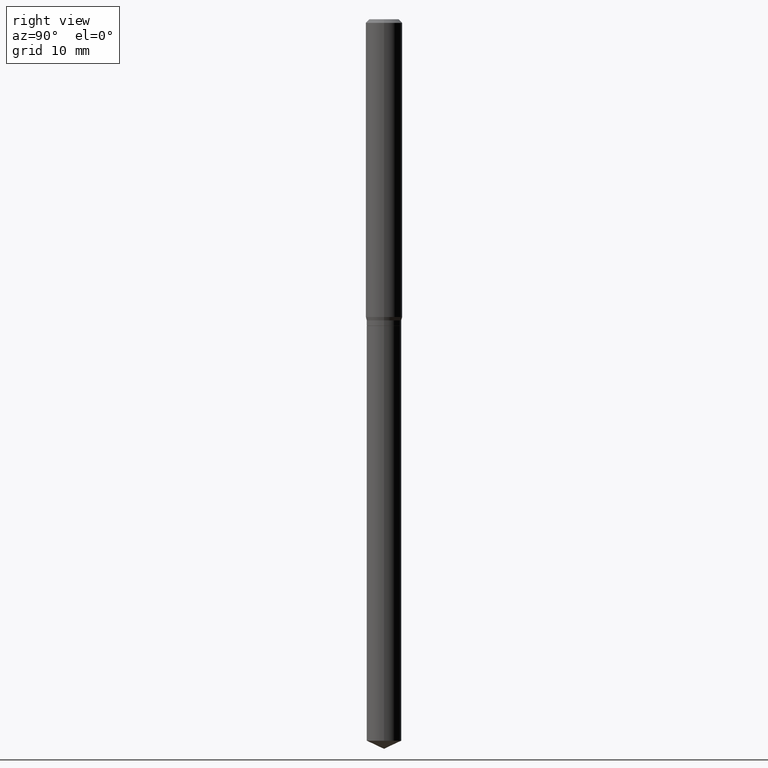
[diagram: clean part render]
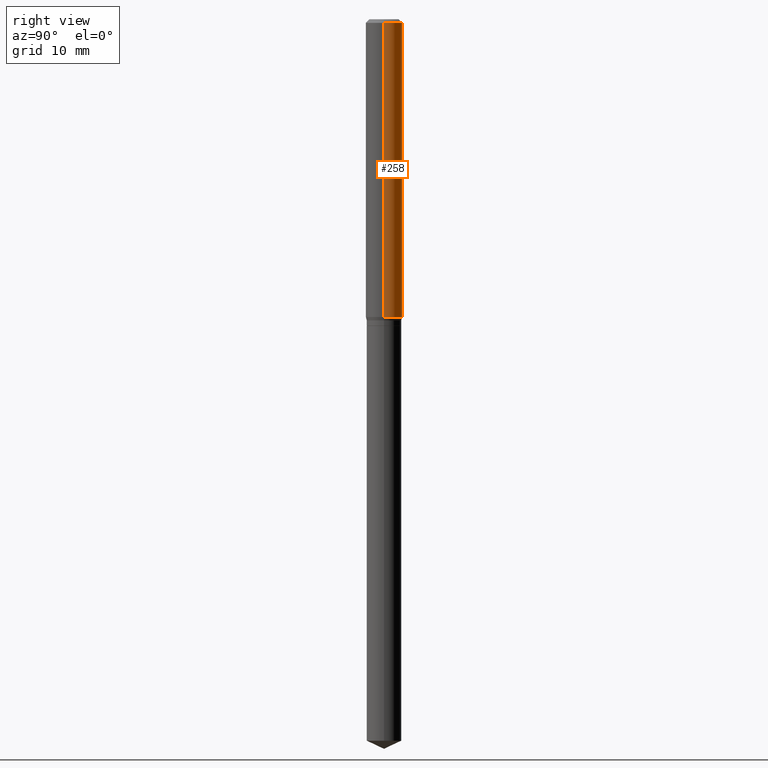
[diagram: same view with one face highlighted and labeled with its STEP entity id]
A machine part, right view. The second image highlights one B-rep face of the part: STEP entity #258.
In plain terms, the highlighted cylindrical surface (edge-blend (fillet) strip) has radius 1.4999 mm, axis along (-0, 0, 1).
Its self-contained STEP definition (entity closure, byte-faithful):
#6 = VERTEX_POINT ( 'NONE', #44 ) ;
#37 = EDGE_CURVE ( 'NONE', #138, #6, #302, .T. ) ;
#44 = CARTESIAN_POINT ( 'NONE',  ( -0.05905000000000011628, -2.947226626344166706E-15, -0.9642904501176713383 ) ) ;
#59 = DIRECTION ( 'NONE',  ( 1.000000000000000000, -6.982962677686266711E-15, 4.876176775795935793E-29 ) ) ;
#67 = LINE ( 'NONE', #216, #459 ) ;
#72 = DIRECTION ( 'NONE',  ( 1.000000000000000000, -6.982962677686266711E-15, 0.000000000000000000 ) ) ;
#87 = ORIENTED_EDGE ( 'NONE', *, *, #452, .T. ) ;
#97 = DIRECTION ( 'NONE',  ( -2.445468806185136597E-29, 3.491481338843145583E-15, 1.000000000000000000 ) ) ;
#98 = CARTESIAN_POINT ( 'NONE',  ( 0.05905000000000006077, -4.123439461173744764E-16, 2.879382386107503023E-30 ) ) ;
#99 = EDGE_CURVE ( 'NONE', #138, #184, #404, .T. ) ;
#125 = CARTESIAN_POINT ( 'NONE',  ( 0.05905000000000011628, -3.779146057927881513E-15, -0.9642904501176713383 ) ) ;
#134 = CARTESIAN_POINT ( 'NONE',  ( 2.888098660104664642E-31, -4.123439461173780879E-17, -0.01181000000000007565 ) ) ;
#138 = VERTEX_POINT ( 'NONE', #125 ) ;
#163 = FACE_OUTER_BOUND ( 'NONE', #212, .T. ) ;
#181 = AXIS2_PLACEMENT_3D ( 'NONE', #134, #97, #252 ) ;
#184 = VERTEX_POINT ( 'NONE', #319 ) ;
#212 = EDGE_LOOP ( 'NONE', ( #421, #87, #350, #321 ) ) ;
#216 = CARTESIAN_POINT ( 'NONE',  ( -0.05905000000000006077, 4.195754854663395916E-16, -2.904631170795524694E-30 ) ) ;
#230 = AXIS2_PLACEMENT_3D ( 'NONE', #307, #456, #72 ) ;
#242 = DIRECTION ( 'NONE',  ( -2.445468806185136597E-29, 3.491481338843145583E-15, 1.000000000000000000 ) ) ;
#246 = CARTESIAN_POINT ( 'NONE',  ( -0.05904999999999999832, -1.284442767744781879E-15, -0.01181000000000007565 ) ) ;
#252 = DIRECTION ( 'NONE',  ( 1.000000000000000000, -6.982962677686266711E-15, 0.000000000000000000 ) ) ;
#258 = ADVANCED_FACE ( 'NONE', ( #163 ), #320, .T. ) ;
#278 = CARTESIAN_POINT ( 'NONE',  ( 0.000000000000000000, 0.000000000000000000, 0.000000000000000000 ) ) ;
#302 = CIRCLE ( 'NONE', #230, 0.05905000000000011628 ) ;
#307 = CARTESIAN_POINT ( 'NONE',  ( 2.358142215864989888E-29, -3.366802111810506988E-15, -0.9642904501176713383 ) ) ;
#319 = CARTESIAN_POINT ( 'NONE',  ( 0.05904999999999999832, -4.535783407291118600E-16, -0.01181000000000007565 ) ) ;
#320 = CYLINDRICAL_SURFACE ( 'NONE', #370, 0.05905000000000006077 ) ;
#321 = ORIENTED_EDGE ( 'NONE', *, *, #99, .F. ) ;
#338 = CIRCLE ( 'NONE', #181, 0.05904999999999999832 ) ;
#350 = ORIENTED_EDGE ( 'NONE', *, *, #408, .F. ) ;
#364 = DIRECTION ( 'NONE',  ( -2.445468806185136877E-29, 3.491481338843145188E-15, 1.000000000000000000 ) ) ;
#370 = AXIS2_PLACEMENT_3D ( 'NONE', #278, #242, #59 ) ;
#375 = VECTOR ( 'NONE', #364, 39.37007874015748143 ) ;
#404 = LINE ( 'NONE', #98, #375 ) ;
#408 = EDGE_CURVE ( 'NONE', #184, #454, #338, .T. ) ;
#421 = ORIENTED_EDGE ( 'NONE', *, *, #37, .T. ) ;
#441 = DIRECTION ( 'NONE',  ( -2.445468806185136877E-29, 3.491481338843145188E-15, 1.000000000000000000 ) ) ;
#452 = EDGE_CURVE ( 'NONE', #6, #454, #67, .T. ) ;
#454 = VERTEX_POINT ( 'NONE', #246 ) ;
#456 = DIRECTION ( 'NONE',  ( -2.445468806185136597E-29, 3.491481338843145583E-15, 1.000000000000000000 ) ) ;
#459 = VECTOR ( 'NONE', #441, 39.37007874015748143 ) ;